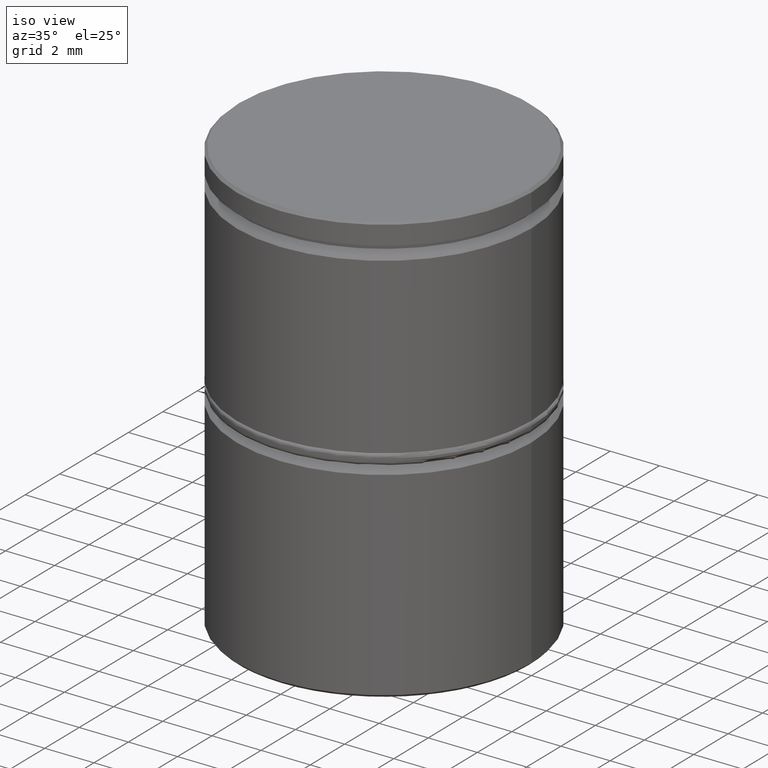
[diagram: clean part render]
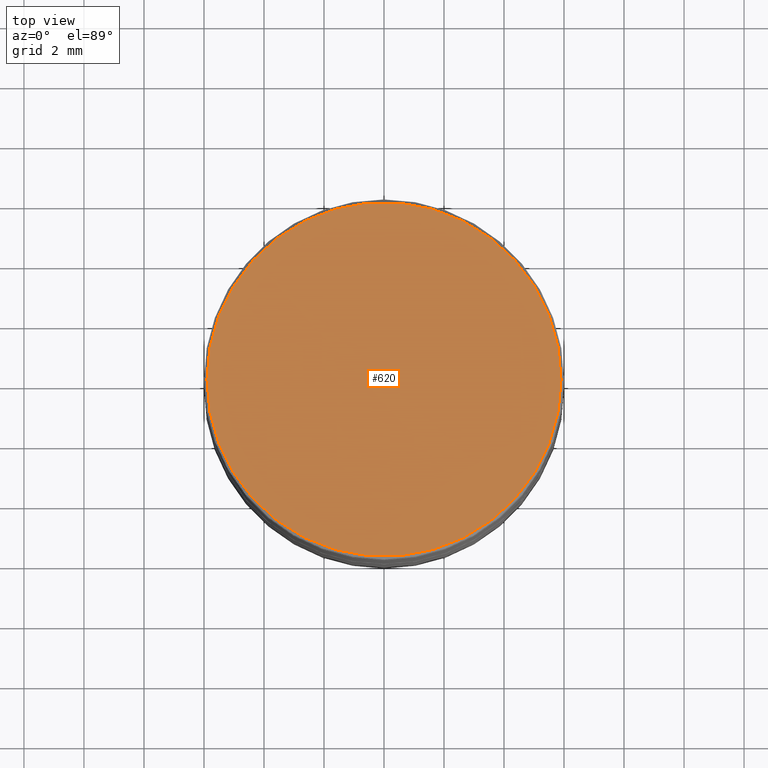
[diagram: tour spotlight — one face highlighted and labeled with its STEP entity id]
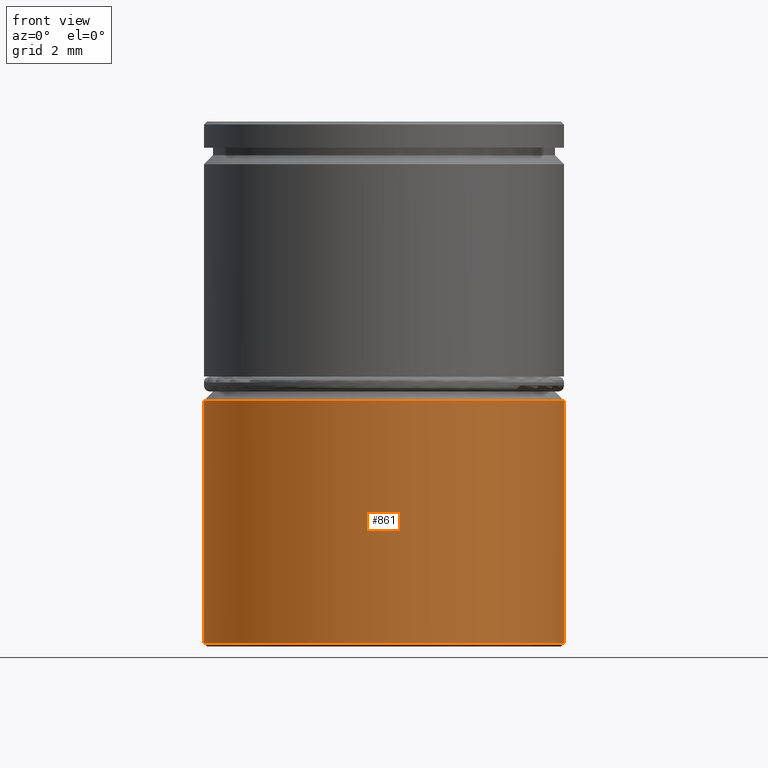
[diagram: tour spotlight — one face highlighted and labeled with its STEP entity id]
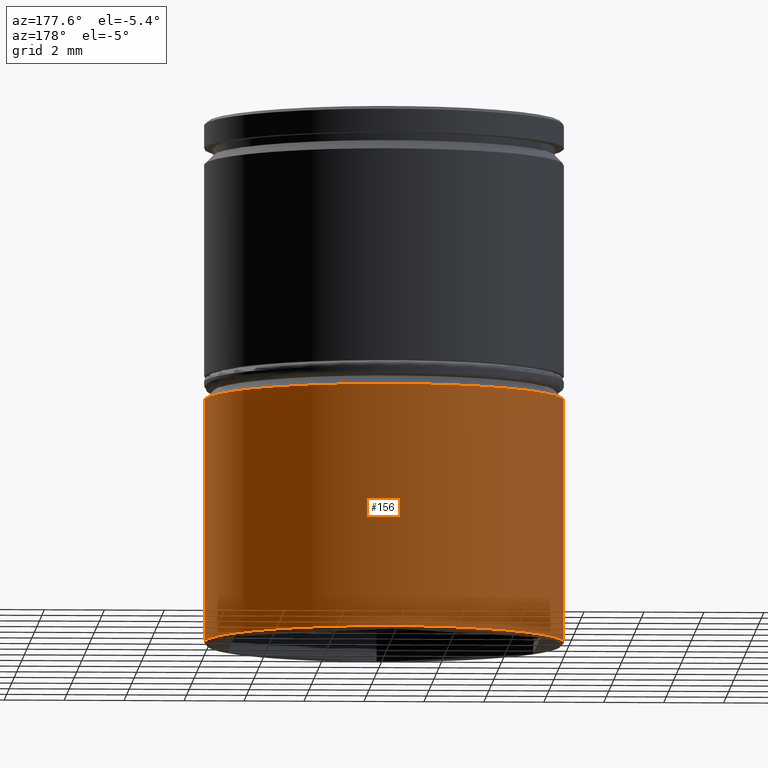
[diagram: tour spotlight — one face highlighted and labeled with its STEP entity id]
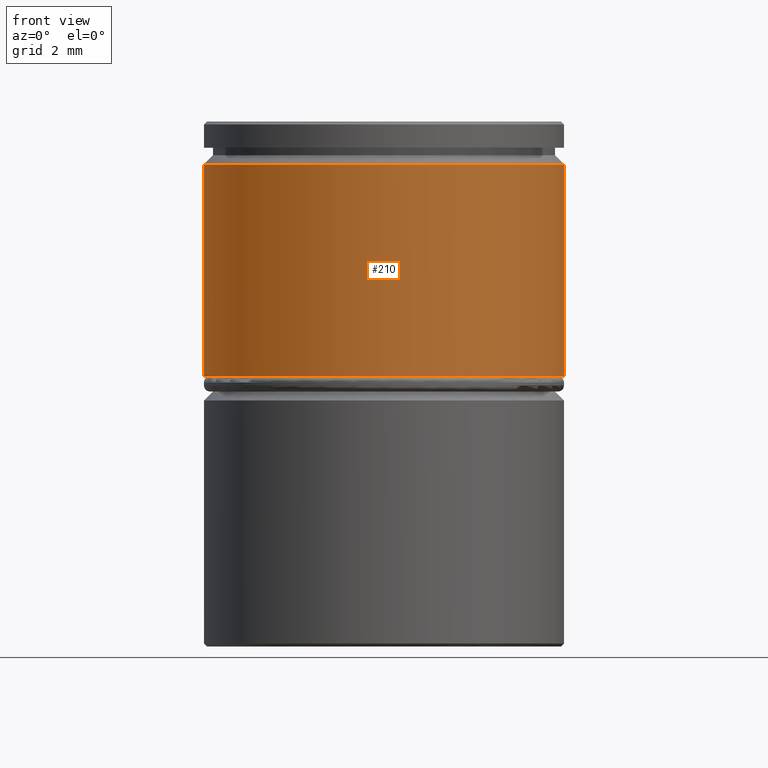
[diagram: tour spotlight — one face highlighted and labeled with its STEP entity id]
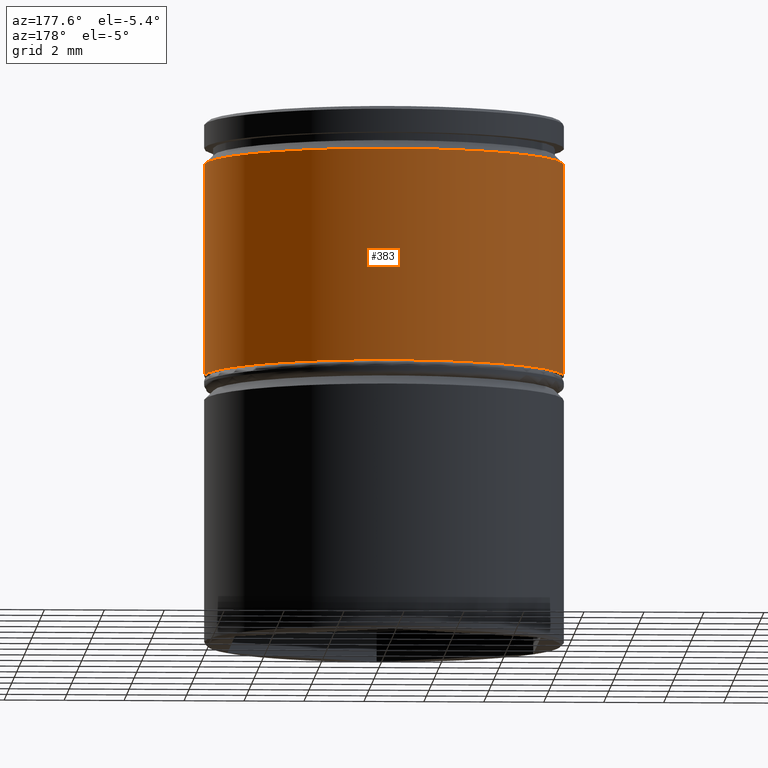
[diagram: tour spotlight — one face highlighted and labeled with its STEP entity id]
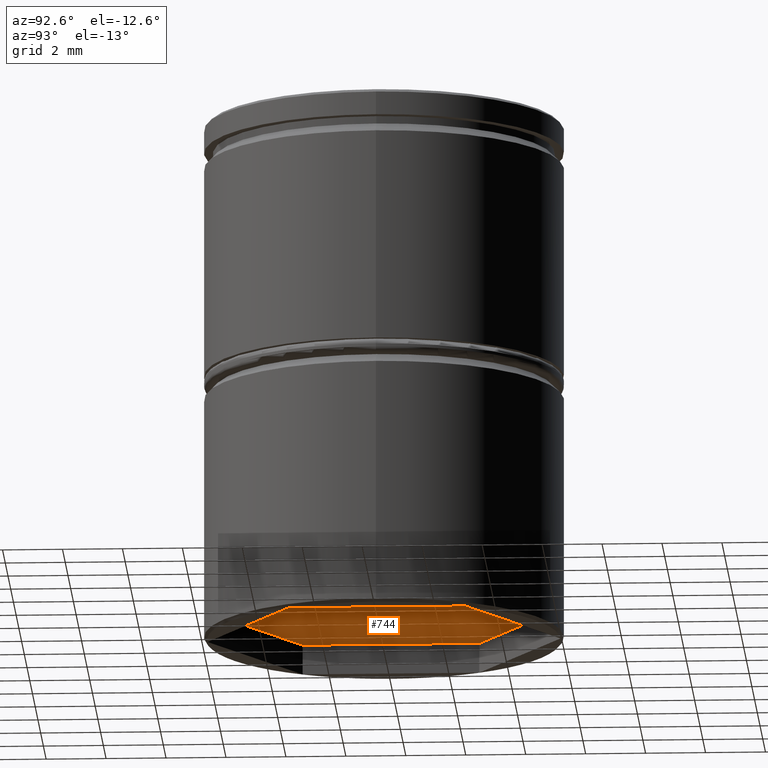
[diagram: tour spotlight — one face highlighted and labeled with its STEP entity id]
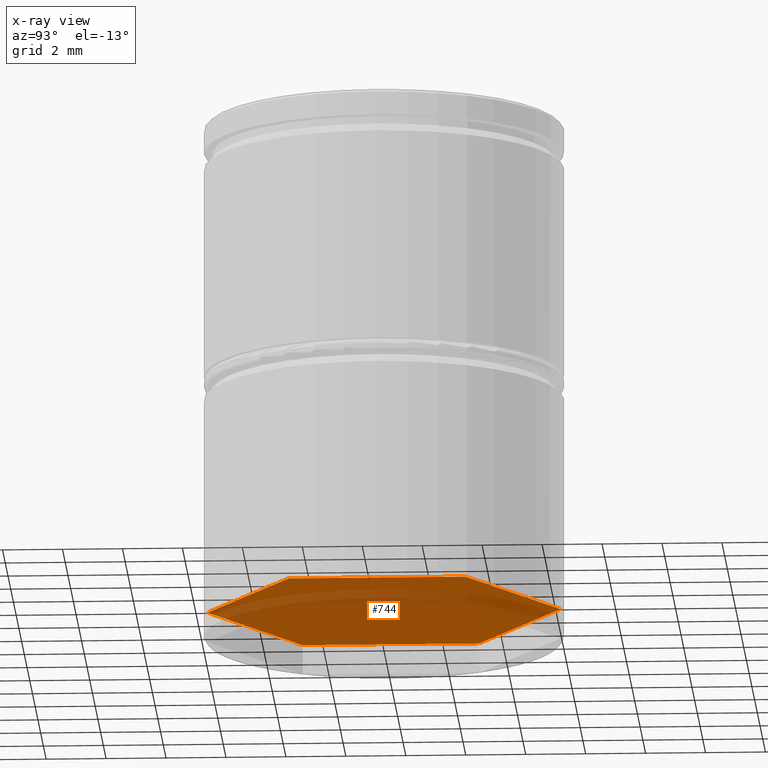
[diagram: x-ray of the same camera — body ghosted, this tour face saturated]
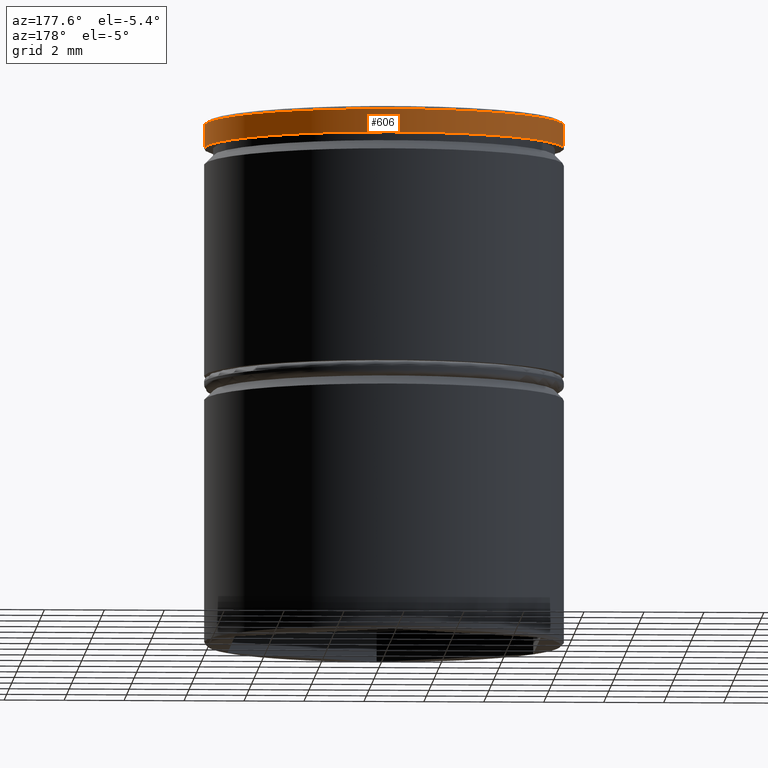
[diagram: tour spotlight — one face highlighted and labeled with its STEP entity id]
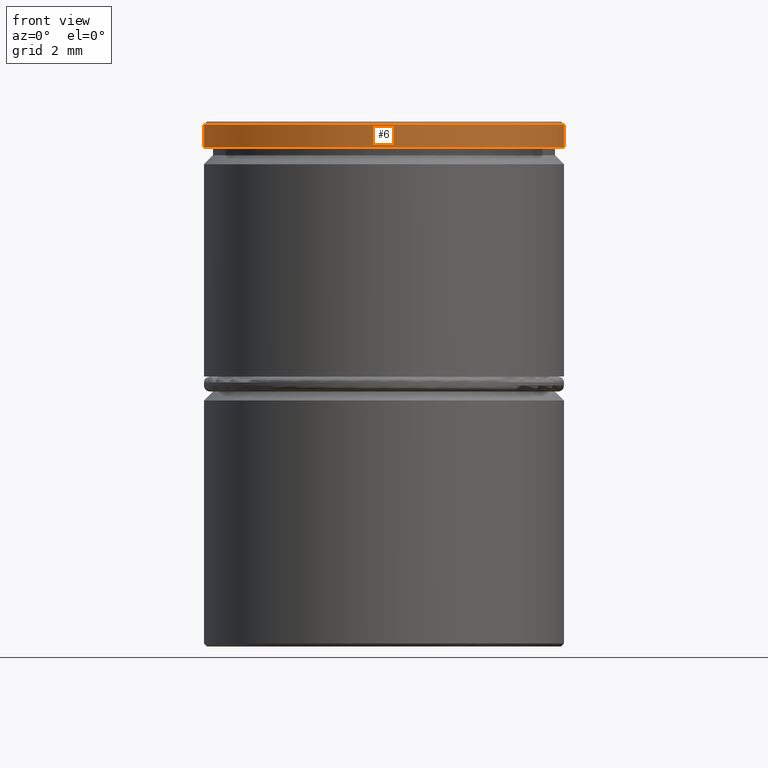
[diagram: tour spotlight — one face highlighted and labeled with its STEP entity id]
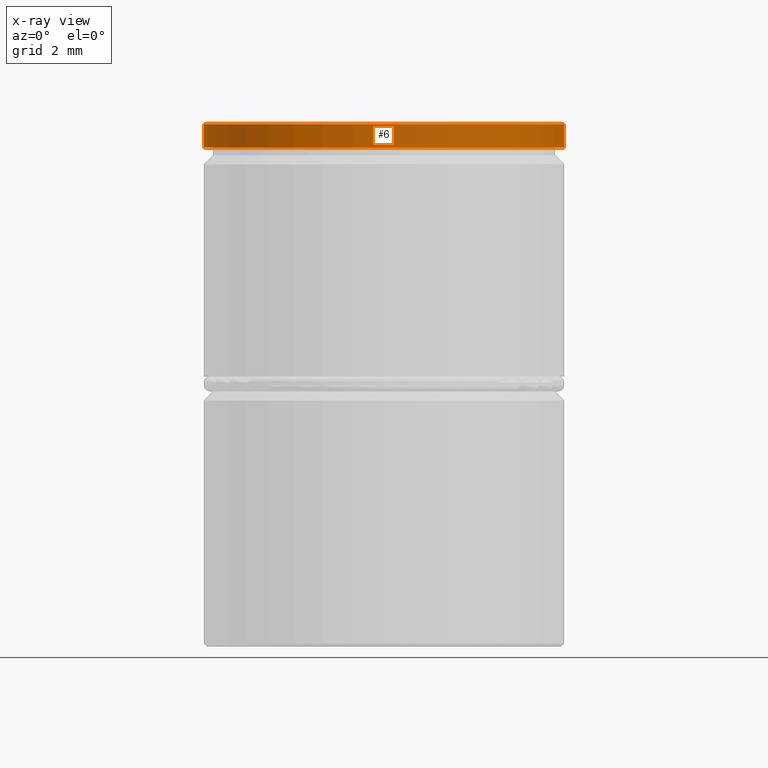
[diagram: x-ray of the same camera — body ghosted, this tour face saturated]
A machine part: a face-by-face anatomy tour. The part has 37 B-rep faces; the first image is the clean iso view, then the 8 largest visible faces are spotlighted one at a time (largest first), each with its STEP entity span.

Face 1 — top view, entity #620. In plain terms, the highlighted planar face has unit normal (0, -0, 1).
Definition (entity closure, byte-faithful):
#3 = CIRCLE ( 'NONE', #520, 5.900000000000002132 ) ;
#35 = DIRECTION ( 'NONE',  ( 0.000000000000000000, -0.000000000000000000, 1.000000000000000000 ) ) ;
#124 = FACE_OUTER_BOUND ( 'NONE', #1010, .T. ) ;
#151 = DIRECTION ( 'NONE',  ( -0.000000000000000000, -0.000000000000000000, 1.000000000000000000 ) ) ;
#160 = ORIENTED_EDGE ( 'NONE', *, *, #575, .T. ) ;
#178 = CIRCLE ( 'NONE', #522, 5.900000000000002132 ) ;
#200 = DIRECTION ( 'NONE',  ( -0.000000000000000000, -0.000000000000000000, 1.000000000000000000 ) ) ;
#204 = PLANE ( 'NONE',  #601 ) ;
#305 = VERTEX_POINT ( 'NONE', #545 ) ;
#416 = ORIENTED_EDGE ( 'NONE', *, *, #713, .T. ) ;
#511 = DIRECTION ( 'NONE',  ( 1.000000000000000000, 0.000000000000000000, 0.000000000000000000 ) ) ;
#520 = AXIS2_PLACEMENT_3D ( 'NONE', #617, #151, #836 ) ;
#522 = AXIS2_PLACEMENT_3D ( 'NONE', #990, #200, #821 ) ;
#545 = CARTESIAN_POINT ( 'NONE',  ( -5.900000000000002132, 0.000000000000000000, 0.000000000000000000 ) ) ;
#575 = EDGE_CURVE ( 'NONE', #886, #305, #178, .T. ) ;
#601 = AXIS2_PLACEMENT_3D ( 'NONE', #898, #35, #511 ) ;
#617 = CARTESIAN_POINT ( 'NONE',  ( 0.000000000000000000, 0.000000000000000000, 0.000000000000000000 ) ) ;
#620 = ADVANCED_FACE ( 'NONE', ( #124 ), #204, .T. ) ;
#713 = EDGE_CURVE ( 'NONE', #305, #886, #3, .T. ) ;
#821 = DIRECTION ( 'NONE',  ( 1.000000000000000000, 0.000000000000000000, 0.000000000000000000 ) ) ;
#836 = DIRECTION ( 'NONE',  ( 1.000000000000000000, 0.000000000000000000, 0.000000000000000000 ) ) ;
#886 = VERTEX_POINT ( 'NONE', #952 ) ;
#898 = CARTESIAN_POINT ( 'NONE',  ( 0.000000000000000000, 0.000000000000000000, 0.000000000000000000 ) ) ;
#952 = CARTESIAN_POINT ( 'NONE',  ( 5.900000000000002132, 7.286648454926752951E-16, 0.000000000000000000 ) ) ;
#990 = CARTESIAN_POINT ( 'NONE',  ( 0.000000000000000000, 0.000000000000000000, 0.000000000000000000 ) ) ;
#1010 = EDGE_LOOP ( 'NONE', ( #416, #160 ) ) ;

Face 2 — front view, entity #861. In plain terms, the highlighted cylindrical surface (partial cylindrical patch) has radius 6 mm, axis along (-0, -0, 1).
Definition (entity closure, byte-faithful):
#23 = ORIENTED_EDGE ( 'NONE', *, *, #319, .T. ) ;
#28 = VERTEX_POINT ( 'NONE', #267 ) ;
#76 = AXIS2_PLACEMENT_3D ( 'NONE', #925, #400, #153 ) ;
#84 = EDGE_CURVE ( 'NONE', #94, #942, #118, .T. ) ;
#94 = VERTEX_POINT ( 'NONE', #749 ) ;
#103 = FACE_OUTER_BOUND ( 'NONE', #230, .T. ) ;
#118 = LINE ( 'NONE', #430, #999 ) ;
#133 = AXIS2_PLACEMENT_3D ( 'NONE', #867, #335, #941 ) ;
#134 = VERTEX_POINT ( 'NONE', #899 ) ;
#153 = DIRECTION ( 'NONE',  ( -1.000000000000000000, 0.000000000000000000, 0.000000000000000000 ) ) ;
#211 = EDGE_CURVE ( 'NONE', #134, #28, #217, .T. ) ;
#217 = LINE ( 'NONE', #527, #554 ) ;
#230 = EDGE_LOOP ( 'NONE', ( #474, #23, #279, #984 ) ) ;
#267 = CARTESIAN_POINT ( 'NONE',  ( -6.000000000000000000, 7.347880794884119736E-16, -9.299999999999991829 ) ) ;
#279 = ORIENTED_EDGE ( 'NONE', *, *, #84, .T. ) ;
#317 = DIRECTION ( 'NONE',  ( -0.000000000000000000, -0.000000000000000000, 1.000000000000000000 ) ) ;
#319 = EDGE_CURVE ( 'NONE', #134, #94, #635, .T. ) ;
#335 = DIRECTION ( 'NONE',  ( -0.000000000000000000, -0.000000000000000000, 1.000000000000000000 ) ) ;
#346 = DIRECTION ( 'NONE',  ( -0.000000000000000000, -0.000000000000000000, 1.000000000000000000 ) ) ;
#400 = DIRECTION ( 'NONE',  ( -0.000000000000000000, -0.000000000000000000, 1.000000000000000000 ) ) ;
#430 = CARTESIAN_POINT ( 'NONE',  ( 6.000000000000000000, 0.000000000000000000, 0.000000000000000000 ) ) ;
#466 = CARTESIAN_POINT ( 'NONE',  ( 0.000000000000000000, 0.000000000000000000, -9.299999999999991829 ) ) ;
#474 = ORIENTED_EDGE ( 'NONE', *, *, #211, .F. ) ;
#508 = CARTESIAN_POINT ( 'NONE',  ( 6.000000000000000000, 0.000000000000000000, -9.299999999999991829 ) ) ;
#527 = CARTESIAN_POINT ( 'NONE',  ( -6.000000000000000000, 7.347880794884119736E-16, 0.000000000000000000 ) ) ;
#554 = VECTOR ( 'NONE', #317, 1000.000000000000000 ) ;
#635 = CIRCLE ( 'NONE', #76, 6.000000000000000000 ) ;
#638 = AXIS2_PLACEMENT_3D ( 'NONE', #466, #694, #1007 ) ;
#694 = DIRECTION ( 'NONE',  ( 0.000000000000000000, 0.000000000000000000, -1.000000000000000000 ) ) ;
#720 = CIRCLE ( 'NONE', #638, 6.000000000000000000 ) ;
#745 = EDGE_CURVE ( 'NONE', #942, #28, #720, .T. ) ;
#749 = CARTESIAN_POINT ( 'NONE',  ( 6.000000000000000000, 0.000000000000000000, -17.40000000000000213 ) ) ;
#861 = ADVANCED_FACE ( 'NONE', ( #103 ), #965, .T. ) ;
#867 = CARTESIAN_POINT ( 'NONE',  ( 0.000000000000000000, 0.000000000000000000, 0.000000000000000000 ) ) ;
#899 = CARTESIAN_POINT ( 'NONE',  ( -6.000000000000000000, 7.347880794884119736E-16, -17.40000000000000213 ) ) ;
#925 = CARTESIAN_POINT ( 'NONE',  ( 0.000000000000000000, 0.000000000000000000, -17.40000000000000213 ) ) ;
#941 = DIRECTION ( 'NONE',  ( 1.000000000000000000, 0.000000000000000000, 0.000000000000000000 ) ) ;
#942 = VERTEX_POINT ( 'NONE', #508 ) ;
#965 = CYLINDRICAL_SURFACE ( 'NONE', #133, 6.000000000000000000 ) ;
#984 = ORIENTED_EDGE ( 'NONE', *, *, #745, .T. ) ;
#999 = VECTOR ( 'NONE', #346, 1000.000000000000000 ) ;
#1007 = DIRECTION ( 'NONE',  ( 1.000000000000000000, 0.000000000000000000, 0.000000000000000000 ) ) ;

Face 3 — auxiliary view, entity #156. In plain terms, the highlighted cylindrical surface (partial cylindrical patch) has radius 6 mm, axis along (-0, -0, 1).
Definition (entity closure, byte-faithful):
#28 = VERTEX_POINT ( 'NONE', #267 ) ;
#84 = EDGE_CURVE ( 'NONE', #94, #942, #118, .T. ) ;
#94 = VERTEX_POINT ( 'NONE', #749 ) ;
#118 = LINE ( 'NONE', #430, #999 ) ;
#132 = ORIENTED_EDGE ( 'NONE', *, *, #349, .T. ) ;
#134 = VERTEX_POINT ( 'NONE', #899 ) ;
#156 = ADVANCED_FACE ( 'NONE', ( #832 ), #209, .T. ) ;
#205 = DIRECTION ( 'NONE',  ( -0.000000000000000000, -0.000000000000000000, 1.000000000000000000 ) ) ;
#209 = CYLINDRICAL_SURFACE ( 'NONE', #845, 6.000000000000000000 ) ;
#211 = EDGE_CURVE ( 'NONE', #134, #28, #217, .T. ) ;
#214 = ORIENTED_EDGE ( 'NONE', *, *, #839, .T. ) ;
#217 = LINE ( 'NONE', #527, #554 ) ;
#262 = CARTESIAN_POINT ( 'NONE',  ( 0.000000000000000000, 0.000000000000000000, -9.299999999999991829 ) ) ;
#267 = CARTESIAN_POINT ( 'NONE',  ( -6.000000000000000000, 7.347880794884119736E-16, -9.299999999999991829 ) ) ;
#317 = DIRECTION ( 'NONE',  ( -0.000000000000000000, -0.000000000000000000, 1.000000000000000000 ) ) ;
#346 = DIRECTION ( 'NONE',  ( -0.000000000000000000, -0.000000000000000000, 1.000000000000000000 ) ) ;
#349 = EDGE_CURVE ( 'NONE', #94, #134, #962, .T. ) ;
#372 = ORIENTED_EDGE ( 'NONE', *, *, #211, .T. ) ;
#430 = CARTESIAN_POINT ( 'NONE',  ( 6.000000000000000000, 0.000000000000000000, 0.000000000000000000 ) ) ;
#481 = DIRECTION ( 'NONE',  ( -1.000000000000000000, 0.000000000000000000, 0.000000000000000000 ) ) ;
#494 = CIRCLE ( 'NONE', #930, 6.000000000000000000 ) ;
#508 = CARTESIAN_POINT ( 'NONE',  ( 6.000000000000000000, 0.000000000000000000, -9.299999999999991829 ) ) ;
#527 = CARTESIAN_POINT ( 'NONE',  ( -6.000000000000000000, 7.347880794884119736E-16, 0.000000000000000000 ) ) ;
#534 = CARTESIAN_POINT ( 'NONE',  ( 0.000000000000000000, 0.000000000000000000, 0.000000000000000000 ) ) ;
#554 = VECTOR ( 'NONE', #317, 1000.000000000000000 ) ;
#560 = CARTESIAN_POINT ( 'NONE',  ( 0.000000000000000000, 0.000000000000000000, -17.40000000000000213 ) ) ;
#576 = DIRECTION ( 'NONE',  ( 0.000000000000000000, 0.000000000000000000, -1.000000000000000000 ) ) ;
#632 = ORIENTED_EDGE ( 'NONE', *, *, #84, .F. ) ;
#749 = CARTESIAN_POINT ( 'NONE',  ( 6.000000000000000000, 0.000000000000000000, -17.40000000000000213 ) ) ;
#752 = AXIS2_PLACEMENT_3D ( 'NONE', #560, #781, #481 ) ;
#762 = DIRECTION ( 'NONE',  ( 1.000000000000000000, 0.000000000000000000, 0.000000000000000000 ) ) ;
#781 = DIRECTION ( 'NONE',  ( -0.000000000000000000, -0.000000000000000000, 1.000000000000000000 ) ) ;
#820 = EDGE_LOOP ( 'NONE', ( #132, #372, #214, #632 ) ) ;
#832 = FACE_OUTER_BOUND ( 'NONE', #820, .T. ) ;
#839 = EDGE_CURVE ( 'NONE', #28, #942, #494, .T. ) ;
#845 = AXIS2_PLACEMENT_3D ( 'NONE', #534, #205, #762 ) ;
#899 = CARTESIAN_POINT ( 'NONE',  ( -6.000000000000000000, 7.347880794884119736E-16, -17.40000000000000213 ) ) ;
#930 = AXIS2_PLACEMENT_3D ( 'NONE', #262, #576, #948 ) ;
#942 = VERTEX_POINT ( 'NONE', #508 ) ;
#948 = DIRECTION ( 'NONE',  ( 1.000000000000000000, 0.000000000000000000, 0.000000000000000000 ) ) ;
#962 = CIRCLE ( 'NONE', #752, 6.000000000000000000 ) ;
#999 = VECTOR ( 'NONE', #346, 1000.000000000000000 ) ;

Face 4 — front view, entity #210. In plain terms, the highlighted cylindrical surface (partial cylindrical patch) has radius 6 mm, axis along (-0, -0, 1).
Definition (entity closure, byte-faithful):
#13 = CARTESIAN_POINT ( 'NONE',  ( 0.000000000000000000, 0.000000000000000000, -8.500000000000000000 ) ) ;
#19 = VECTOR ( 'NONE', #188, 1000.000000000000000 ) ;
#29 = CARTESIAN_POINT ( 'NONE',  ( 6.000000000000000000, 0.000000000000000000, 0.000000000000000000 ) ) ;
#32 = EDGE_CURVE ( 'NONE', #562, #410, #590, .T. ) ;
#40 = DIRECTION ( 'NONE',  ( -0.000000000000000000, -0.000000000000000000, 1.000000000000000000 ) ) ;
#48 = ORIENTED_EDGE ( 'NONE', *, *, #89, .T. ) ;
#65 = VECTOR ( 'NONE', #40, 1000.000000000000000 ) ;
#89 = EDGE_CURVE ( 'NONE', #994, #640, #742, .T. ) ;
#121 = CARTESIAN_POINT ( 'NONE',  ( 6.000000000000000000, 0.000000000000000000, -8.500000000000000000 ) ) ;
#125 = DIRECTION ( 'NONE',  ( 1.000000000000000000, 0.000000000000000000, 0.000000000000000000 ) ) ;
#135 = FACE_OUTER_BOUND ( 'NONE', #456, .T. ) ;
#142 = ORIENTED_EDGE ( 'NONE', *, *, #32, .F. ) ;
#158 = CARTESIAN_POINT ( 'NONE',  ( 6.000000000000000000, 0.000000000000000000, -1.424999999999999156 ) ) ;
#166 = EDGE_CURVE ( 'NONE', #640, #410, #811, .T. ) ;
#188 = DIRECTION ( 'NONE',  ( -0.000000000000000000, -0.000000000000000000, 1.000000000000000000 ) ) ;
#210 = ADVANCED_FACE ( 'NONE', ( #135 ), #685, .T. ) ;
#216 = ORIENTED_EDGE ( 'NONE', *, *, #936, .T. ) ;
#228 = AXIS2_PLACEMENT_3D ( 'NONE', #302, #841, #125 ) ;
#260 = CIRCLE ( 'NONE', #736, 6.000000000000000000 ) ;
#291 = DIRECTION ( 'NONE',  ( -0.000000000000000000, -0.000000000000000000, 1.000000000000000000 ) ) ;
#302 = CARTESIAN_POINT ( 'NONE',  ( 0.000000000000000000, 0.000000000000000000, -1.424999999999999156 ) ) ;
#353 = CARTESIAN_POINT ( 'NONE',  ( -6.000000000000000000, 7.347880794884119736E-16, -8.500000000000000000 ) ) ;
#410 = VERTEX_POINT ( 'NONE', #743 ) ;
#423 = AXIS2_PLACEMENT_3D ( 'NONE', #996, #291, #917 ) ;
#456 = EDGE_LOOP ( 'NONE', ( #142, #216, #48, #618 ) ) ;
#562 = VERTEX_POINT ( 'NONE', #353 ) ;
#578 = DIRECTION ( 'NONE',  ( 1.000000000000000000, 0.000000000000000000, 0.000000000000000000 ) ) ;
#590 = LINE ( 'NONE', #750, #65 ) ;
#618 = ORIENTED_EDGE ( 'NONE', *, *, #166, .T. ) ;
#640 = VERTEX_POINT ( 'NONE', #158 ) ;
#685 = CYLINDRICAL_SURFACE ( 'NONE', #423, 6.000000000000000000 ) ;
#733 = DIRECTION ( 'NONE',  ( -0.000000000000000000, -0.000000000000000000, 1.000000000000000000 ) ) ;
#736 = AXIS2_PLACEMENT_3D ( 'NONE', #13, #733, #578 ) ;
#742 = LINE ( 'NONE', #29, #19 ) ;
#743 = CARTESIAN_POINT ( 'NONE',  ( -6.000000000000000000, 7.347880794884119736E-16, -1.424999999999999156 ) ) ;
#750 = CARTESIAN_POINT ( 'NONE',  ( -6.000000000000000000, 7.347880794884119736E-16, 0.000000000000000000 ) ) ;
#811 = CIRCLE ( 'NONE', #228, 6.000000000000000000 ) ;
#841 = DIRECTION ( 'NONE',  ( 0.000000000000000000, 0.000000000000000000, -1.000000000000000000 ) ) ;
#917 = DIRECTION ( 'NONE',  ( 1.000000000000000000, 0.000000000000000000, 0.000000000000000000 ) ) ;
#936 = EDGE_CURVE ( 'NONE', #562, #994, #260, .T. ) ;
#994 = VERTEX_POINT ( 'NONE', #121 ) ;
#996 = CARTESIAN_POINT ( 'NONE',  ( 0.000000000000000000, 0.000000000000000000, 0.000000000000000000 ) ) ;

Face 5 — auxiliary view, entity #383. In plain terms, the highlighted cylindrical surface (partial cylindrical patch) has radius 6 mm, axis along (-0, -0, 1).
Definition (entity closure, byte-faithful):
#19 = VECTOR ( 'NONE', #188, 1000.000000000000000 ) ;
#29 = CARTESIAN_POINT ( 'NONE',  ( 6.000000000000000000, 0.000000000000000000, 0.000000000000000000 ) ) ;
#32 = EDGE_CURVE ( 'NONE', #562, #410, #590, .T. ) ;
#40 = DIRECTION ( 'NONE',  ( -0.000000000000000000, -0.000000000000000000, 1.000000000000000000 ) ) ;
#42 = AXIS2_PLACEMENT_3D ( 'NONE', #108, #561, #238 ) ;
#65 = VECTOR ( 'NONE', #40, 1000.000000000000000 ) ;
#89 = EDGE_CURVE ( 'NONE', #994, #640, #742, .T. ) ;
#108 = CARTESIAN_POINT ( 'NONE',  ( 0.000000000000000000, 0.000000000000000000, -8.500000000000000000 ) ) ;
#121 = CARTESIAN_POINT ( 'NONE',  ( 6.000000000000000000, 0.000000000000000000, -8.500000000000000000 ) ) ;
#144 = DIRECTION ( 'NONE',  ( 1.000000000000000000, 0.000000000000000000, 0.000000000000000000 ) ) ;
#158 = CARTESIAN_POINT ( 'NONE',  ( 6.000000000000000000, 0.000000000000000000, -1.424999999999999156 ) ) ;
#162 = DIRECTION ( 'NONE',  ( 1.000000000000000000, 0.000000000000000000, 0.000000000000000000 ) ) ;
#179 = EDGE_CURVE ( 'NONE', #410, #640, #439, .T. ) ;
#188 = DIRECTION ( 'NONE',  ( -0.000000000000000000, -0.000000000000000000, 1.000000000000000000 ) ) ;
#193 = AXIS2_PLACEMENT_3D ( 'NONE', #512, #822, #144 ) ;
#213 = CIRCLE ( 'NONE', #42, 6.000000000000000000 ) ;
#238 = DIRECTION ( 'NONE',  ( 1.000000000000000000, 0.000000000000000000, 0.000000000000000000 ) ) ;
#309 = AXIS2_PLACEMENT_3D ( 'NONE', #392, #538, #162 ) ;
#353 = CARTESIAN_POINT ( 'NONE',  ( -6.000000000000000000, 7.347880794884119736E-16, -8.500000000000000000 ) ) ;
#383 = ADVANCED_FACE ( 'NONE', ( #630 ), #871, .T. ) ;
#392 = CARTESIAN_POINT ( 'NONE',  ( 0.000000000000000000, 0.000000000000000000, 0.000000000000000000 ) ) ;
#405 = ORIENTED_EDGE ( 'NONE', *, *, #32, .T. ) ;
#410 = VERTEX_POINT ( 'NONE', #743 ) ;
#439 = CIRCLE ( 'NONE', #193, 6.000000000000000000 ) ;
#512 = CARTESIAN_POINT ( 'NONE',  ( 0.000000000000000000, 0.000000000000000000, -1.424999999999999156 ) ) ;
#538 = DIRECTION ( 'NONE',  ( -0.000000000000000000, -0.000000000000000000, 1.000000000000000000 ) ) ;
#561 = DIRECTION ( 'NONE',  ( -0.000000000000000000, -0.000000000000000000, 1.000000000000000000 ) ) ;
#562 = VERTEX_POINT ( 'NONE', #353 ) ;
#590 = LINE ( 'NONE', #750, #65 ) ;
#602 = EDGE_LOOP ( 'NONE', ( #852, #405, #1031, #684 ) ) ;
#630 = FACE_OUTER_BOUND ( 'NONE', #602, .T. ) ;
#640 = VERTEX_POINT ( 'NONE', #158 ) ;
#684 = ORIENTED_EDGE ( 'NONE', *, *, #89, .F. ) ;
#742 = LINE ( 'NONE', #29, #19 ) ;
#743 = CARTESIAN_POINT ( 'NONE',  ( -6.000000000000000000, 7.347880794884119736E-16, -1.424999999999999156 ) ) ;
#750 = CARTESIAN_POINT ( 'NONE',  ( -6.000000000000000000, 7.347880794884119736E-16, 0.000000000000000000 ) ) ;
#822 = DIRECTION ( 'NONE',  ( 0.000000000000000000, 0.000000000000000000, -1.000000000000000000 ) ) ;
#852 = ORIENTED_EDGE ( 'NONE', *, *, #862, .T. ) ;
#862 = EDGE_CURVE ( 'NONE', #994, #562, #213, .T. ) ;
#871 = CYLINDRICAL_SURFACE ( 'NONE', #309, 6.000000000000000000 ) ;
#994 = VERTEX_POINT ( 'NONE', #121 ) ;
#1031 = ORIENTED_EDGE ( 'NONE', *, *, #179, .T. ) ;

Face 6 — auxiliary view, entity #744. An x-ray twin of the same camera follows (body ghosted, this face saturated) — the face is partly hidden behind the body. In plain terms, the highlighted planar face has unit normal (0, 0, -1).
Definition (entity closure, byte-faithful):
#9 = CARTESIAN_POINT ( 'NONE',  ( 5.099999999999999645, 2.944486372867090029, -16.50000000000000000 ) ) ;
#21 = CARTESIAN_POINT ( 'NONE',  ( 5.099999999999999645, -2.944486372867090918, -16.50000000000000000 ) ) ;
#52 = EDGE_CURVE ( 'NONE', #829, #806, #582, .T. ) ;
#68 = CARTESIAN_POINT ( 'NONE',  ( -5.100000000000000533, -2.944486372867089585, -16.50000000000000000 ) ) ;
#87 = ORIENTED_EDGE ( 'NONE', *, *, #374, .T. ) ;
#95 = VECTOR ( 'NONE', #627, 1000.000000000000000 ) ;
#101 = VERTEX_POINT ( 'NONE', #593 ) ;
#137 = ORIENTED_EDGE ( 'NONE', *, *, #272, .T. ) ;
#139 = VERTEX_POINT ( 'NONE', #364 ) ;
#164 = VECTOR ( 'NONE', #356, 1000.000000000000114 ) ;
#197 = CARTESIAN_POINT ( 'NONE',  ( -8.646952822150503169E-16, -5.888972745734181835, -16.50000000000000000 ) ) ;
#218 = CARTESIAN_POINT ( 'NONE',  ( -5.100000000000000533, 2.944486372867091806, -16.50000000000000000 ) ) ;
#223 = ORIENTED_EDGE ( 'NONE', *, *, #546, .T. ) ;
#249 = LINE ( 'NONE', #9, #966 ) ;
#272 = EDGE_CURVE ( 'NONE', #806, #691, #550, .T. ) ;
#301 = EDGE_LOOP ( 'NONE', ( #223, #87, #633, #722, #339, #137 ) ) ;
#339 = ORIENTED_EDGE ( 'NONE', *, *, #52, .T. ) ;
#342 = CARTESIAN_POINT ( 'NONE',  ( -5.100000000000000533, 2.944486372867091806, -16.50000000000000000 ) ) ;
#350 = LINE ( 'NONE', #21, #706 ) ;
#354 = DIRECTION ( 'NONE',  ( -0.8660254037844387076, -0.4999999999999998890, 0.000000000000000000 ) ) ;
#356 = DIRECTION ( 'NONE',  ( -0.8660254037844384856, 0.5000000000000002220, 0.000000000000000000 ) ) ;
#364 = CARTESIAN_POINT ( 'NONE',  ( 5.099999999999999645, -2.944486372867090918, -16.50000000000000000 ) ) ;
#374 = EDGE_CURVE ( 'NONE', #391, #101, #1017, .T. ) ;
#377 = DIRECTION ( 'NONE',  ( -1.000000000000000000, 0.000000000000000000, -0.000000000000000000 ) ) ;
#385 = PLANE ( 'NONE',  #556 ) ;
#391 = VERTEX_POINT ( 'NONE', #475 ) ;
#452 = FACE_OUTER_BOUND ( 'NONE', #301, .T. ) ;
#460 = CARTESIAN_POINT ( 'NONE',  ( 0.000000000000000000, 0.000000000000000000, -16.50000000000000000 ) ) ;
#475 = CARTESIAN_POINT ( 'NONE',  ( 0.000000000000000000, 5.888972745734180059, -16.50000000000000000 ) ) ;
#480 = EDGE_CURVE ( 'NONE', #101, #139, #249, .T. ) ;
#546 = EDGE_CURVE ( 'NONE', #691, #391, #732, .T. ) ;
#550 = LINE ( 'NONE', #68, #95 ) ;
#553 = CARTESIAN_POINT ( 'NONE',  ( 0.000000000000000000, 5.888972745734180059, -16.50000000000000000 ) ) ;
#556 = AXIS2_PLACEMENT_3D ( 'NONE', #460, #628, #377 ) ;
#564 = DIRECTION ( 'NONE',  ( 0.000000000000000000, -1.000000000000000000, 0.000000000000000000 ) ) ;
#572 = VECTOR ( 'NONE', #809, 1000.000000000000114 ) ;
#582 = LINE ( 'NONE', #197, #164 ) ;
#593 = CARTESIAN_POINT ( 'NONE',  ( 5.099999999999999645, 2.944486372867090029, -16.50000000000000000 ) ) ;
#627 = DIRECTION ( 'NONE',  ( 0.000000000000000000, 1.000000000000000000, 0.000000000000000000 ) ) ;
#628 = DIRECTION ( 'NONE',  ( 0.000000000000000000, 0.000000000000000000, -1.000000000000000000 ) ) ;
#633 = ORIENTED_EDGE ( 'NONE', *, *, #480, .T. ) ;
#634 = DIRECTION ( 'NONE',  ( 0.8660254037844387076, -0.4999999999999998890, 0.000000000000000000 ) ) ;
#691 = VERTEX_POINT ( 'NONE', #218 ) ;
#706 = VECTOR ( 'NONE', #354, 1000.000000000000114 ) ;
#722 = ORIENTED_EDGE ( 'NONE', *, *, #949, .T. ) ;
#732 = LINE ( 'NONE', #342, #572 ) ;
#744 = ADVANCED_FACE ( 'NONE', ( #452 ), #385, .T. ) ;
#771 = VECTOR ( 'NONE', #634, 1000.000000000000114 ) ;
#793 = CARTESIAN_POINT ( 'NONE',  ( -8.646952822150503169E-16, -5.888972745734181835, -16.50000000000000000 ) ) ;
#806 = VERTEX_POINT ( 'NONE', #885 ) ;
#809 = DIRECTION ( 'NONE',  ( 0.8660254037844389297, 0.4999999999999995559, 0.000000000000000000 ) ) ;
#829 = VERTEX_POINT ( 'NONE', #793 ) ;
#885 = CARTESIAN_POINT ( 'NONE',  ( -5.100000000000000533, -2.944486372867089585, -16.50000000000000000 ) ) ;
#949 = EDGE_CURVE ( 'NONE', #139, #829, #350, .T. ) ;
#966 = VECTOR ( 'NONE', #564, 1000.000000000000000 ) ;
#1017 = LINE ( 'NONE', #553, #771 ) ;

Face 7 — auxiliary view, entity #606. In plain terms, the highlighted cylindrical surface (partial cylindrical patch) has radius 6 mm, axis along (-0, -0, 1).
Definition (entity closure, byte-faithful):
#70 = EDGE_CURVE ( 'NONE', #1009, #629, #296, .T. ) ;
#73 = CARTESIAN_POINT ( 'NONE',  ( 6.000000000000000000, 0.000000000000000000, -0.09999999999999852063 ) ) ;
#74 = DIRECTION ( 'NONE',  ( 1.000000000000000000, 0.000000000000000000, 0.000000000000000000 ) ) ;
#129 = CYLINDRICAL_SURFACE ( 'NONE', #161, 6.000000000000000000 ) ;
#161 = AXIS2_PLACEMENT_3D ( 'NONE', #592, #586, #434 ) ;
#208 = CARTESIAN_POINT ( 'NONE',  ( -6.000000000000000000, 7.347880794884119736E-16, -0.09999999999999852063 ) ) ;
#219 = VERTEX_POINT ( 'NONE', #73 ) ;
#246 = CARTESIAN_POINT ( 'NONE',  ( 0.000000000000000000, 0.000000000000000000, -0.09999999999999852063 ) ) ;
#275 = FACE_OUTER_BOUND ( 'NONE', #327, .T. ) ;
#296 = CIRCLE ( 'NONE', #643, 6.000000000000000000 ) ;
#310 = VECTOR ( 'NONE', #471, 1000.000000000000000 ) ;
#326 = ORIENTED_EDGE ( 'NONE', *, *, #70, .T. ) ;
#327 = EDGE_LOOP ( 'NONE', ( #326, #953, #838, #649 ) ) ;
#343 = AXIS2_PLACEMENT_3D ( 'NONE', #246, #409, #404 ) ;
#404 = DIRECTION ( 'NONE',  ( 1.000000000000000000, 0.000000000000000000, 0.000000000000000000 ) ) ;
#409 = DIRECTION ( 'NONE',  ( 0.000000000000000000, 0.000000000000000000, -1.000000000000000000 ) ) ;
#427 = CIRCLE ( 'NONE', #343, 6.000000000000000000 ) ;
#434 = DIRECTION ( 'NONE',  ( 1.000000000000000000, 0.000000000000000000, 0.000000000000000000 ) ) ;
#471 = DIRECTION ( 'NONE',  ( -0.000000000000000000, -0.000000000000000000, 1.000000000000000000 ) ) ;
#566 = VERTEX_POINT ( 'NONE', #208 ) ;
#581 = CARTESIAN_POINT ( 'NONE',  ( 6.000000000000000000, 0.000000000000000000, -0.8749999999999998890 ) ) ;
#586 = DIRECTION ( 'NONE',  ( -0.000000000000000000, -0.000000000000000000, 1.000000000000000000 ) ) ;
#592 = CARTESIAN_POINT ( 'NONE',  ( 0.000000000000000000, 0.000000000000000000, 0.000000000000000000 ) ) ;
#606 = ADVANCED_FACE ( 'NONE', ( #275 ), #129, .T. ) ;
#629 = VERTEX_POINT ( 'NONE', #678 ) ;
#643 = AXIS2_PLACEMENT_3D ( 'NONE', #782, #931, #74 ) ;
#649 = ORIENTED_EDGE ( 'NONE', *, *, #1005, .F. ) ;
#667 = CARTESIAN_POINT ( 'NONE',  ( 6.000000000000000000, 0.000000000000000000, 0.000000000000000000 ) ) ;
#668 = EDGE_CURVE ( 'NONE', #629, #566, #856, .T. ) ;
#678 = CARTESIAN_POINT ( 'NONE',  ( -6.000000000000000000, 7.347880794884119736E-16, -0.8749999999999998890 ) ) ;
#693 = VECTOR ( 'NONE', #981, 1000.000000000000000 ) ;
#782 = CARTESIAN_POINT ( 'NONE',  ( 0.000000000000000000, 0.000000000000000000, -0.8749999999999998890 ) ) ;
#838 = ORIENTED_EDGE ( 'NONE', *, *, #846, .T. ) ;
#846 = EDGE_CURVE ( 'NONE', #566, #219, #427, .T. ) ;
#856 = LINE ( 'NONE', #860, #310 ) ;
#860 = CARTESIAN_POINT ( 'NONE',  ( -6.000000000000000000, 7.347880794884119736E-16, 0.000000000000000000 ) ) ;
#888 = LINE ( 'NONE', #667, #693 ) ;
#931 = DIRECTION ( 'NONE',  ( -0.000000000000000000, -0.000000000000000000, 1.000000000000000000 ) ) ;
#953 = ORIENTED_EDGE ( 'NONE', *, *, #668, .T. ) ;
#981 = DIRECTION ( 'NONE',  ( -0.000000000000000000, -0.000000000000000000, 1.000000000000000000 ) ) ;
#1005 = EDGE_CURVE ( 'NONE', #1009, #219, #888, .T. ) ;
#1009 = VERTEX_POINT ( 'NONE', #581 ) ;

Face 8 — front view, entity #6. An x-ray twin of the same camera follows (body ghosted, this face saturated) — the face is partly hidden behind the body. In plain terms, the highlighted cylindrical surface (partial cylindrical patch) has radius 6 mm, axis along (-0, -0, 1).
Definition (entity closure, byte-faithful):
#6 = ADVANCED_FACE ( 'NONE', ( #648 ), #959, .T. ) ;
#73 = CARTESIAN_POINT ( 'NONE',  ( 6.000000000000000000, 0.000000000000000000, -0.09999999999999852063 ) ) ;
#111 = CARTESIAN_POINT ( 'NONE',  ( 0.000000000000000000, 0.000000000000000000, -0.09999999999999852063 ) ) ;
#163 = DIRECTION ( 'NONE',  ( 1.000000000000000000, 0.000000000000000000, 0.000000000000000000 ) ) ;
#208 = CARTESIAN_POINT ( 'NONE',  ( -6.000000000000000000, 7.347880794884119736E-16, -0.09999999999999852063 ) ) ;
#215 = AXIS2_PLACEMENT_3D ( 'NONE', #872, #800, #163 ) ;
#219 = VERTEX_POINT ( 'NONE', #73 ) ;
#242 = EDGE_LOOP ( 'NONE', ( #533, #247, #368, #611 ) ) ;
#247 = ORIENTED_EDGE ( 'NONE', *, *, #902, .T. ) ;
#256 = CARTESIAN_POINT ( 'NONE',  ( 0.000000000000000000, 0.000000000000000000, 0.000000000000000000 ) ) ;
#310 = VECTOR ( 'NONE', #471, 1000.000000000000000 ) ;
#368 = ORIENTED_EDGE ( 'NONE', *, *, #1005, .T. ) ;
#445 = AXIS2_PLACEMENT_3D ( 'NONE', #256, #571, #883 ) ;
#455 = EDGE_CURVE ( 'NONE', #219, #566, #982, .T. ) ;
#471 = DIRECTION ( 'NONE',  ( -0.000000000000000000, -0.000000000000000000, 1.000000000000000000 ) ) ;
#533 = ORIENTED_EDGE ( 'NONE', *, *, #668, .F. ) ;
#566 = VERTEX_POINT ( 'NONE', #208 ) ;
#571 = DIRECTION ( 'NONE',  ( -0.000000000000000000, -0.000000000000000000, 1.000000000000000000 ) ) ;
#580 = DIRECTION ( 'NONE',  ( 0.000000000000000000, 0.000000000000000000, -1.000000000000000000 ) ) ;
#581 = CARTESIAN_POINT ( 'NONE',  ( 6.000000000000000000, 0.000000000000000000, -0.8749999999999998890 ) ) ;
#611 = ORIENTED_EDGE ( 'NONE', *, *, #455, .T. ) ;
#624 = AXIS2_PLACEMENT_3D ( 'NONE', #111, #580, #957 ) ;
#626 = CIRCLE ( 'NONE', #215, 6.000000000000000000 ) ;
#629 = VERTEX_POINT ( 'NONE', #678 ) ;
#648 = FACE_OUTER_BOUND ( 'NONE', #242, .T. ) ;
#667 = CARTESIAN_POINT ( 'NONE',  ( 6.000000000000000000, 0.000000000000000000, 0.000000000000000000 ) ) ;
#668 = EDGE_CURVE ( 'NONE', #629, #566, #856, .T. ) ;
#678 = CARTESIAN_POINT ( 'NONE',  ( -6.000000000000000000, 7.347880794884119736E-16, -0.8749999999999998890 ) ) ;
#693 = VECTOR ( 'NONE', #981, 1000.000000000000000 ) ;
#800 = DIRECTION ( 'NONE',  ( -0.000000000000000000, -0.000000000000000000, 1.000000000000000000 ) ) ;
#856 = LINE ( 'NONE', #860, #310 ) ;
#860 = CARTESIAN_POINT ( 'NONE',  ( -6.000000000000000000, 7.347880794884119736E-16, 0.000000000000000000 ) ) ;
#872 = CARTESIAN_POINT ( 'NONE',  ( 0.000000000000000000, 0.000000000000000000, -0.8749999999999998890 ) ) ;
#883 = DIRECTION ( 'NONE',  ( 1.000000000000000000, 0.000000000000000000, 0.000000000000000000 ) ) ;
#888 = LINE ( 'NONE', #667, #693 ) ;
#902 = EDGE_CURVE ( 'NONE', #629, #1009, #626, .T. ) ;
#957 = DIRECTION ( 'NONE',  ( 1.000000000000000000, 0.000000000000000000, 0.000000000000000000 ) ) ;
#959 = CYLINDRICAL_SURFACE ( 'NONE', #445, 6.000000000000000000 ) ;
#981 = DIRECTION ( 'NONE',  ( -0.000000000000000000, -0.000000000000000000, 1.000000000000000000 ) ) ;
#982 = CIRCLE ( 'NONE', #624, 6.000000000000000000 ) ;
#1005 = EDGE_CURVE ( 'NONE', #1009, #219, #888, .T. ) ;
#1009 = VERTEX_POINT ( 'NONE', #581 ) ;